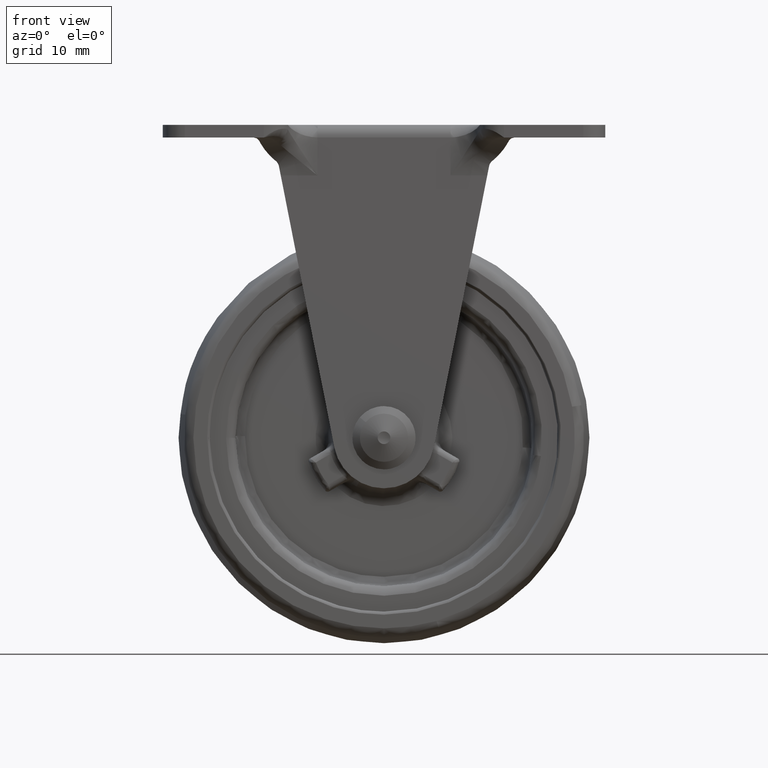
[diagram: clean part render]
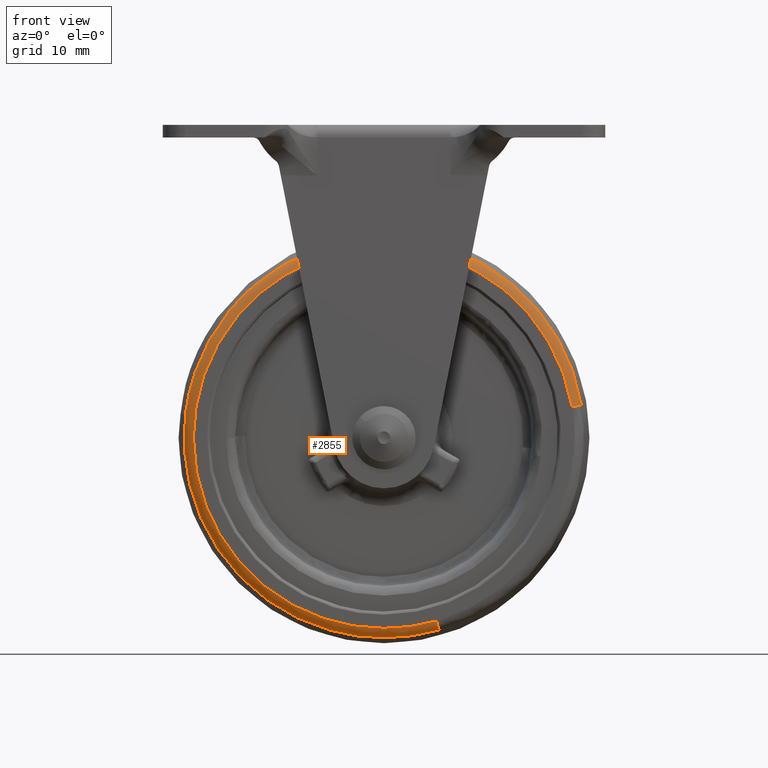
[diagram: same view with one face highlighted and labeled with its STEP entity id]
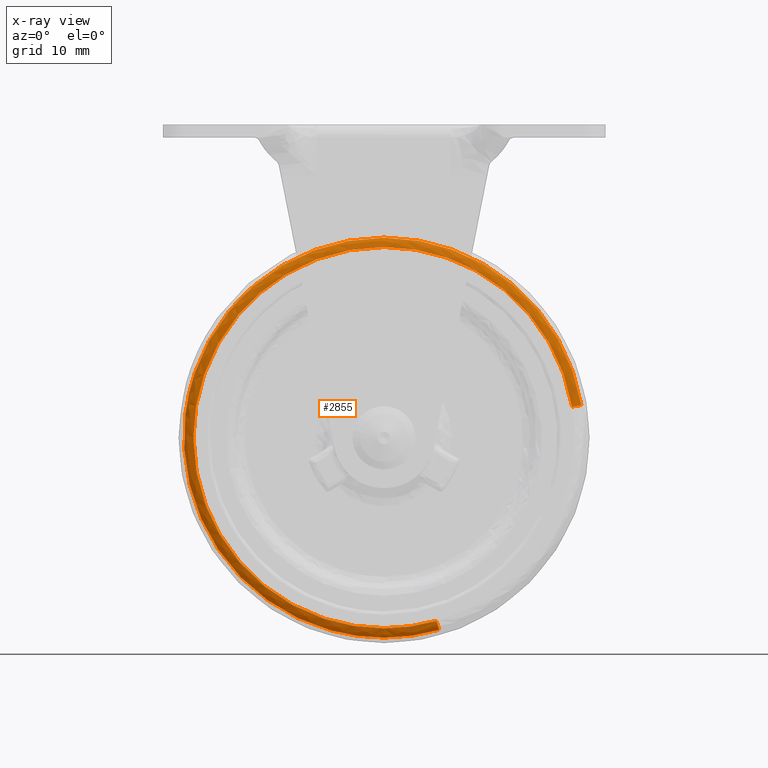
[diagram: x-ray of the same camera — body ghosted, the highlighted face saturated]
A machine part, front view. The second image highlights one B-rep face of the part: STEP entity #2855.
The next image is the same camera in x-ray: the body ghosted, the highlighted face saturated — about 0% of this face is hidden behind the body in this view.
In plain terms, the highlighted face is a freeform B-spline surface patch.
Its self-contained STEP definition (entity closure, byte-faithful):
#2623=CARTESIAN_POINT('',(-15.286248543437541,-9.278350407474363,-78.407682962927822));
#2624=VERTEX_POINT('',#2623);
#2625=CARTESIAN_POINT('',(7.210436321169896,-9.278347197282418,-42.855525342881897));
#2626=VERTEX_POINT('',#2625);
#2643=CARTESIAN_POINT('',(5.756112784111831,-10.500000000000000,-43.095244027652512));
#2644=VERTEX_POINT('',#2643);
#2645=CARTESIAN_POINT('',(7.210436321169896,-9.278347197282418,-42.855525342881897));
#2646=CARTESIAN_POINT('',(7.178836754019881,-9.448373912088377,-42.860733954651963));
#2647=CARTESIAN_POINT('',(7.049175842438832,-9.797717297303105,-42.882106188838897));
#2648=CARTESIAN_POINT('',(6.738382324162896,-10.151614041854440,-42.933334826447933));
#2649=CARTESIAN_POINT('',(6.299996382644837,-10.424884409220100,-43.005594745671587));
#2650=CARTESIAN_POINT('',(5.980261815486409,-10.500378281161540,-43.058297151937673));
#2651=CARTESIAN_POINT('',(5.756112784111831,-10.500000000000000,-43.095244027652512));
#2652=B_SPLINE_CURVE_WITH_KNOTS('',3,(#2645,#2646,#2647,#2648,#2649,#2650,#2651),.UNSPECIFIED.,.F.,.U.,(4,1,1,1,4),(0.000000224911104,0.519066379622189,1.102996005488461,1.394980835999054,2.076264843755196),.UNSPECIFIED.);
#2653=EDGE_CURVE('',#2626,#2644,#2652,.T.);
#2655=CARTESIAN_POINT('',(-15.692286151948540,-10.500000000000000,-76.990765741479123));
#2656=VERTEX_POINT('',#2655);
#2673=CARTESIAN_POINT('',(-15.286248543437541,-9.278350407474363,-78.407682962927822));
#2674=CARTESIAN_POINT('',(-15.296144828459861,-9.469685103605469,-78.373148682439364));
#2675=CARTESIAN_POINT('',(-15.331254467117450,-9.786605165326424,-78.250629362579559));
#2676=CARTESIAN_POINT('',(-15.426086099640250,-10.181997106751050,-77.919702939921493));
#2677=CARTESIAN_POINT('',(-15.546330185884139,-10.437634771966030,-77.500096694057831));
#2678=CARTESIAN_POINT('',(-15.644622008214331,-10.500110015557871,-77.157095521531247));
#2679=CARTESIAN_POINT('',(-15.692286151948540,-10.500000000000000,-76.990765741479123));
#2680=B_SPLINE_CURVE_WITH_KNOTS('',3,(#2673,#2674,#2675,#2676,#2677,#2678,#2679),.UNSPECIFIED.,.F.,.U.,(4,1,1,1,4),(0.000000224912007,0.583951890234030,1.005732663054068,1.557196356690432,2.076261733951056),.UNSPECIFIED.);
#2681=EDGE_CURVE('',#2624,#2656,#2680,.T.);
#2686=CARTESIAN_POINT('',(7.224866590762296,-9.184800220234854,-42.853146776372924));
#2687=CARTESIAN_POINT('',(2.078017367135221,-9.184800220234854,-11.628280185610635));
#2688=CARTESIAN_POINT('',(-29.146849223627083,-9.184800220234854,-16.775129409237707));
#2689=CARTESIAN_POINT('',(-60.371715814389376,-9.184800220234854,-21.921978632864786));
#2690=CARTESIAN_POINT('',(-55.224866590762296,-9.184800220234854,-53.146845223627082));
#2691=CARTESIAN_POINT('',(-50.078017367135224,-9.184800220234854,-84.371711814389357));
#2692=CARTESIAN_POINT('',(-18.853150776372939,-9.184800220234854,-79.224862590762328));
#2693=CARTESIAN_POINT('',(-17.044424877015658,-9.184800220234852,-78.926727145930172));
#2694=CARTESIAN_POINT('',(-15.282220356728910,-9.184800220234854,-78.421742640076786));
#2695=CARTESIAN_POINT('',(7.053260521588556,-10.585745868416423,-42.881432904075972));
#2696=CARTESIAN_POINT('',(1.934697425664514,-10.585745868416423,-11.828172382487411));
#2697=CARTESIAN_POINT('',(-29.118563095924035,-10.585745868416423,-16.946735478411451));
#2698=CARTESIAN_POINT('',(-60.171823617512587,-10.585745868416423,-22.065298574335475));
#2699=CARTESIAN_POINT('',(-55.053260521588555,-10.585745868416423,-53.118559095924049));
#2700=CARTESIAN_POINT('',(-49.934697425664496,-10.585745868416423,-84.171819617512597));
#2701=CARTESIAN_POINT('',(-18.881436904075976,-10.585745868416423,-79.053256521588565));
#2702=CARTESIAN_POINT('',(-17.082651426430310,-10.585745868416419,-78.756759573805553));
#2703=CARTESIAN_POINT('',(-15.330131654993574,-10.585745868416419,-78.254550369034447));
#2704=CARTESIAN_POINT('',(5.663108640351256,-10.497035478112680,-43.110574063410390));
#2705=CARTESIAN_POINT('',(0.773686703761639,-10.497035478112680,-13.447465423059132));
#2706=CARTESIAN_POINT('',(-28.889421936589617,-10.497035478112680,-18.336887359648749));
#2707=CARTESIAN_POINT('',(-58.552530576940889,-10.497035478112680,-23.226309296238359));
#2708=CARTESIAN_POINT('',(-53.663108640351254,-10.497035478112680,-52.889417936589624));
#2709=CARTESIAN_POINT('',(-48.773686703761641,-10.497035478112680,-82.552526576940878));
#2710=CARTESIAN_POINT('',(-19.110578063410390,-10.497035478112680,-77.663104640351250));
#2711=CARTESIAN_POINT('',(-17.392318268855334,-10.497035478112682,-77.379880881367711));
#2712=CARTESIAN_POINT('',(-15.718253017692714,-10.497035478112677,-76.900153923518872));
#2720=(BOUNDED_SURFACE()B_SPLINE_SURFACE(2,2,((#2686,#2695,#2704),(#2687,#2696,#2705),(#2688,#2697,#2706),(#2689,#2698,#2707),(#2690,#2699,#2708),(#2691,#2700,#2709),(#2692,#2701,#2710),(#2693,#2702,#2711),(#2694,#2703,#2712)),.UNSPECIFIED.,.F.,.F.,.U.)B_SPLINE_SURFACE_WITH_KNOTS((3,2,2,2,3),(3,3),(0.0,52.433150795789579,104.866301591579200,157.299452387368800,161.494103575959290),(0.0,2.379381011712925),.UNSPECIFIED.)GEOMETRIC_REPRESENTATION_ITEM()RATIONAL_B_SPLINE_SURFACE(((0.914492820881647,0.667331331204623,0.918296117526874),(0.646644074991827,0.471874509593035,0.649333411840531),(0.914492820881647,0.667331331204623,0.918296117526874),(0.646644074991827,0.471874509593035,0.649333411840531),(0.914492820881647,0.667331331204623,0.918296117526874),(0.646644074991827,0.471874509593035,0.649333411840531),(0.914492820881647,0.667331331204623,0.918296117526874),(0.893064925680669,0.651694788737734,0.896779105560766),(0.875065492996615,0.638560092543621,0.878704814791027)))REPRESENTATION_ITEM('')SURFACE());
#2721=CARTESIAN_POINT('',(-24.0,-9.278350515463870,-79.631576594482993));
#2722=VERTEX_POINT('',#2721);
#2723=CARTESIAN_POINT('',(-24.0,-9.278350515463870,-79.631576594482993));
#2724=CARTESIAN_POINT('',(-22.436721365039539,-9.278350515472017,-79.631668059100377));
#2725=CARTESIAN_POINT('',(-19.494114035646039,-9.278350496173749,-79.412953979253672));
#2726=CARTESIAN_POINT('',(-16.612228493189001,-9.278350441005667,-78.787708106073524));
#2727=CARTESIAN_POINT('',(-15.286248543437541,-9.278350407474363,-78.407682962927822));
#2728=B_SPLINE_CURVE_WITH_KNOTS('',3,(#2723,#2724,#2725,#2726,#2727),.UNSPECIFIED.,.F.,.U.,(4,1,4),(1.828818E-009,4.689826257207092,8.827911730288111),.UNSPECIFIED.);
#2729=EDGE_CURVE('',#2722,#2624,#2728,.T.);
#2730=ORIENTED_EDGE('',*,*,#2729,.T.);
#2731=ORIENTED_EDGE('',*,*,#2681,.T.);
#2732=CARTESIAN_POINT('',(-24.0,-10.500000000000000,-78.157629176648555));
#2733=VERTEX_POINT('',#2732);
#2734=CARTESIAN_POINT('',(-24.0,-10.500000000000000,-78.157629176648555));
#2735=CARTESIAN_POINT('',(-22.334215195293101,-10.500000000000000,-78.157760354793965));
#2736=CARTESIAN_POINT('',(-19.528750226987640,-10.500000000000011,-77.924547153494728));
#2737=CARTESIAN_POINT('',(-16.787922576690910,-10.499999999999989,-77.304756680524250));
#2738=CARTESIAN_POINT('',(-15.692286151948540,-10.500000000000000,-76.990765741479123));
#2739=B_SPLINE_CURVE_WITH_KNOTS('',3,(#2734,#2735,#2736,#2737,#2738),.UNSPECIFIED.,.F.,.U.,(4,1,4),(9.604442E-010,4.997341114401102,8.416574559828456),.UNSPECIFIED.);
#2740=EDGE_CURVE('',#2733,#2656,#2739,.T.);
#2741=ORIENTED_EDGE('',*,*,#2740,.F.);
#2742=CARTESIAN_POINT('',(-54.157633176648503,-10.500000000000000,-47.999997680879332));
#2743=VERTEX_POINT('',#2742);
#2744=CARTESIAN_POINT('',(-54.157633176648503,-10.500000000000000,-47.999997680879332));
#2745=CARTESIAN_POINT('',(-54.157745504487970,-10.500000000000030,-49.603723257069447));
#2746=CARTESIAN_POINT('',(-53.945536981819473,-10.499999999999959,-52.255991648133460));
#2747=CARTESIAN_POINT('',(-53.076061986760507,-10.500000000000011,-56.301927646106272));
#2748=CARTESIAN_POINT('',(-51.847351318292873,-10.500000000000030,-59.803548177866460));
#2749=CARTESIAN_POINT('',(-50.002674007263337,-10.499999999999970,-63.440404678357730));
#2750=CARTESIAN_POINT('',(-47.564965975383927,-10.500000000000030,-67.017161975764068));
#2751=CARTESIAN_POINT('',(-44.214389626673309,-10.499999999999950,-70.580032903281719));
#2752=CARTESIAN_POINT('',(-40.551403699301680,-10.500000000000041,-73.331546909257483));
#2753=CARTESIAN_POINT('',(-36.817073601495657,-10.499999999999970,-75.386821757192621));
#2754=CARTESIAN_POINT('',(-33.310513982860620,-10.500000000000060,-76.776698869355258));
#2755=CARTESIAN_POINT('',(-28.934444608456150,-10.499999999999901,-77.872799618239725));
#2756=CARTESIAN_POINT('',(-25.850458334663131,-10.500000000000069,-78.157856515005122));
#2757=CARTESIAN_POINT('',(-24.0,-10.500000000000000,-78.157629176648555));
#2758=B_SPLINE_CURVE_WITH_KNOTS('',3,(#2744,#2745,#2746,#2747,#2748,#2749,#2750,#2751,#2752,#2753,#2754,#2755,#2756,#2757),.UNSPECIFIED.,.F.,.U.,(4,1,1,1,1,1,1,1,1,1,1,4),(0.000000069216981,4.811162535834292,7.956937569414521,12.398032318226800,15.913908661990110,20.169968314376341,25.351148004736430,30.532452920832061,33.863265932889199,38.119325854322327,41.820246910334888,47.371572783468032),.UNSPECIFIED.);
#2759=EDGE_CURVE('',#2743,#2733,#2758,.T.);
#2760=ORIENTED_EDGE('',*,*,#2759,.F.);
#2761=CARTESIAN_POINT('',(-24.0,-10.500000000000000,-17.842362823351451));
#2762=VERTEX_POINT('',#2761);
#2763=CARTESIAN_POINT('',(-24.0,-10.500000000000000,-17.842362823351451));
#2764=CARTESIAN_POINT('',(-26.035521892358659,-10.500000000000011,-17.842039870888510));
#2765=CARTESIAN_POINT('',(-29.427877121659929,-10.499999999999980,-18.187226190169081));
#2766=CARTESIAN_POINT('',(-33.777420550589873,-10.500000000000030,-19.390948095963878));
#2767=CARTESIAN_POINT('',(-37.373062982183583,-10.499999999999970,-20.880308470632841));
#2768=CARTESIAN_POINT('',(-40.273312838892252,-10.500000000000041,-22.535059926494782));
#2769=CARTESIAN_POINT('',(-43.168610793172292,-10.499999999999989,-24.641336570180510));
#2770=CARTESIAN_POINT('',(-45.550560044442669,-10.499999999999879,-26.800230022424842));
#2771=CARTESIAN_POINT('',(-48.182240128155712,-10.500000000000060,-29.832151883269169));
#2772=CARTESIAN_POINT('',(-50.668854456816760,-10.499999999999970,-33.603245242628986));
#2773=CARTESIAN_POINT('',(-52.475841239634548,-10.500000000000011,-37.748353864675337));
#2774=CARTESIAN_POINT('',(-53.811646897866801,-10.500000000000000,-42.633839686396662));
#2775=CARTESIAN_POINT('',(-54.158040966330503,-10.500000000000000,-45.841100925238528));
#2776=CARTESIAN_POINT('',(-54.157633176648503,-10.500000000000000,-47.999997680879332));
#2777=B_SPLINE_CURVE_WITH_KNOTS('',3,(#2763,#2764,#2765,#2766,#2767,#2768,#2769,#2770,#2771,#2772,#2773,#2774,#2775,#2776),.UNSPECIFIED.,.F.,.U.,(4,1,1,1,1,1,1,1,1,1,1,4),(0.000000069122315,6.106490011767534,10.177482472312290,13.508309446233200,17.764370537905510,20.169969121072910,24.240898834113551,27.386676254413761,32.197860591022547,37.749228200826451,40.894994956244709,47.371574678214131),.UNSPECIFIED.);
#2778=EDGE_CURVE('',#2762,#2743,#2777,.T.);
#2779=ORIENTED_EDGE('',*,*,#2778,.F.);
#2780=CARTESIAN_POINT('',(5.756112784111831,-10.500000000000000,-43.095244027652512));
#2781=CARTESIAN_POINT('',(5.450693167219987,-10.499999999999989,-41.241152678308453));
#2782=CARTESIAN_POINT('',(4.548014199947097,-10.500000000000020,-37.805220630042847));
#2783=CARTESIAN_POINT('',(2.641014067761168,-10.500000000000041,-33.677102743950272));
#2784=CARTESIAN_POINT('',(0.656818613157704,-10.499999999999980,-30.545334934163549));
#2785=CARTESIAN_POINT('',(-1.498422498058744,-10.499999999999860,-27.804689449954989));
#2786=CARTESIAN_POINT('',(-4.057038483281787,-10.500000000000430,-25.270054120455239));
#2787=CARTESIAN_POINT('',(-7.307222609695081,-10.499999999999860,-22.777473892892420));
#2788=CARTESIAN_POINT('',(-10.814132499448061,-10.499999999999860,-20.758803224833439));
#2789=CARTESIAN_POINT('',(-15.089927260727480,-10.500000000000441,-19.067841919639509));
#2790=CARTESIAN_POINT('',(-19.468132982824500,-10.499999999999730,-18.063892024130620));
#2791=CARTESIAN_POINT('',(-22.563075306267539,-10.500000000000201,-17.842315669982899));
#2792=CARTESIAN_POINT('',(-24.0,-10.500000000000000,-17.842362823351451));
#2793=B_SPLINE_CURVE_WITH_KNOTS('',3,(#2780,#2781,#2782,#2783,#2784,#2785,#2786,#2787,#2788,#2789,#2790,#2791,#2792),.UNSPECIFIED.,.F.,.U.,(4,1,1,1,1,1,1,1,1,1,4),(0.000000059397458,5.637200633879999,10.611229363641280,13.595640232895020,16.745856551906169,21.056703056945519,24.372663741916028,29.015065964804521,33.160092647556141,38.134134817174441,42.444916941264502),.UNSPECIFIED.);
#2794=EDGE_CURVE('',#2644,#2762,#2793,.T.);
#2795=ORIENTED_EDGE('',*,*,#2794,.F.);
#2796=ORIENTED_EDGE('',*,*,#2653,.F.);
#2797=CARTESIAN_POINT('',(-24.0,-9.278344721349473,-16.368414311317402));
#2798=VERTEX_POINT('',#2797);
#2799=CARTESIAN_POINT('',(7.210436321169896,-9.278347197282418,-42.855525342881897));
#2800=CARTESIAN_POINT('',(6.984224725413351,-9.278347068965859,-41.482817104010223));
#2801=CARTESIAN_POINT('',(6.416255418846849,-9.278346841572654,-39.050201198377842));
#2802=CARTESIAN_POINT('',(5.170733936572727,-9.278346520169613,-35.611888571575889));
#2803=CARTESIAN_POINT('',(3.360388181529676,-9.278346174009172,-31.908720686510140));
#2804=CARTESIAN_POINT('',(0.937096499758688,-9.278345841261480,-28.349043780211169));
#2805=CARTESIAN_POINT('',(-1.940730642424285,-9.278345550268945,-25.236054245780821));
#2806=CARTESIAN_POINT('',(-5.060835383030327,-9.278345298569976,-22.543420161499061));
#2807=CARTESIAN_POINT('',(-8.862519996259337,-9.278345067121952,-20.067434749031442));
#2808=CARTESIAN_POINT('',(-13.758242138109130,-9.278344865443389,-17.909900334199051));
#2809=CARTESIAN_POINT('',(-18.840854317845800,-9.278344746833609,-16.641043455135492));
#2810=CARTESIAN_POINT('',(-22.376903967611131,-9.278344721343116,-16.368344458690991));
#2811=CARTESIAN_POINT('',(-24.0,-9.278344721349473,-16.368414311317402));
#2812=B_SPLINE_CURVE_WITH_KNOTS('',3,(#2799,#2800,#2801,#2802,#2803,#2804,#2805,#2806,#2807,#2808,#2809,#2810,#2811),.UNSPECIFIED.,.F.,.U.,(4,1,1,1,1,1,1,1,1,1,4),(0.000000058187709,4.173666006069958,7.477852010374988,10.955946929578330,16.520896243238521,20.346783960636710,23.650903734886420,28.868029514870209,33.911265263423651,39.650104526163631,44.519403615883093),.UNSPECIFIED.);
#2813=EDGE_CURVE('',#2626,#2798,#2812,.T.);
#2814=ORIENTED_EDGE('',*,*,#2813,.T.);
#2815=CARTESIAN_POINT('',(-55.420019612158342,-9.278347600580617,-44.347696272314103));
#2816=VERTEX_POINT('',#2815);
#2817=CARTESIAN_POINT('',(-24.0,-9.278344721349473,-16.368414311317402));
#2818=CARTESIAN_POINT('',(-25.318451361211149,-9.278344788732179,-16.368375738289860));
#2819=CARTESIAN_POINT('',(-27.955366143167200,-9.278344931017360,-16.533512678415210));
#2820=CARTESIAN_POINT('',(-32.025974540333500,-9.278345174221053,-17.306053993206479));
#2821=CARTESIAN_POINT('',(-36.187734895295250,-9.278345449929663,-18.690437684033139));
#2822=CARTESIAN_POINT('',(-40.052956252535722,-9.278345735972472,-20.634896413780730));
#2823=CARTESIAN_POINT('',(-43.968489937396221,-9.278346057906530,-23.311462124386100));
#2824=CARTESIAN_POINT('',(-47.358036515299702,-9.278346374934280,-26.470902237989598));
#2825=CARTESIAN_POINT('',(-50.088158187580319,-9.278346674122888,-29.978884647220259));
#2826=CARTESIAN_POINT('',(-51.883583966244942,-9.278346901586472,-32.960562027090361));
#2827=CARTESIAN_POINT('',(-53.279233544080952,-9.278347105972534,-35.884094714380844));
#2828=CARTESIAN_POINT('',(-54.611951452957911,-9.278347343886656,-39.614989929023693));
#2829=CARTESIAN_POINT('',(-55.212591054091170,-9.278347508698888,-42.561791346650523));
#2830=CARTESIAN_POINT('',(-55.420019612158342,-9.278347600580617,-44.347696272314103));
#2831=B_SPLINE_CURVE_WITH_KNOTS('',3,(#2817,#2818,#2819,#2820,#2821,#2822,#2823,#2824,#2825,#2826,#2827,#2828,#2829,#2830),.UNSPECIFIED.,.F.,.U.,(4,1,1,1,1,1,1,1,1,1,1,4),(0.000000061576849,3.955356184452263,7.910781840882230,12.405549481587350,17.080116083954969,20.855719990428089,26.608958888381721,30.923951651810771,34.160195237737227,37.036854121828803,40.632664788619230,46.026369489523610),.UNSPECIFIED.);
#2832=EDGE_CURVE('',#2798,#2816,#2831,.T.);
#2833=ORIENTED_EDGE('',*,*,#2832,.T.);
#2834=CARTESIAN_POINT('',(-55.420019612158342,-9.278347600580617,-44.347696272314103));
#2835=CARTESIAN_POINT('',(-55.620640207543197,-9.278347671826472,-46.072631390610908));
#2836=CARTESIAN_POINT('',(-55.739104972035278,-9.278347830655614,-49.625272308227167));
#2837=CARTESIAN_POINT('',(-55.065478584777402,-9.278348087486533,-54.599539715185202));
#2838=CARTESIAN_POINT('',(-53.853045675468891,-9.278348324790363,-58.670204428587937));
#2839=CARTESIAN_POINT('',(-52.429189287105892,-9.278348536355196,-61.993966978923297));
#2840=CARTESIAN_POINT('',(-50.504375149800843,-9.278348775079781,-65.461090911996962));
#2841=CARTESIAN_POINT('',(-47.977891368438620,-9.278349032349771,-68.794944111660470));
#2842=CARTESIAN_POINT('',(-44.814542238500003,-9.278349306519148,-71.928428962163167));
#2843=CARTESIAN_POINT('',(-41.778680874110520,-9.278349538637459,-74.262812849206114));
#2844=CARTESIAN_POINT('',(-38.717868903101781,-9.278349746913609,-76.057479637623359));
#2845=CARTESIAN_POINT('',(-35.749664726706307,-9.278349931669252,-77.424183153163455));
#2846=CARTESIAN_POINT('',(-32.264586149151853,-9.278350130152957,-78.628527242727046));
#2847=CARTESIAN_POINT('',(-28.237210547173831,-9.278350333188476,-79.448767135237588));
#2848=CARTESIAN_POINT('',(-25.319785852903021,-9.278350461314831,-79.631611901791601));
#2849=CARTESIAN_POINT('',(-24.0,-9.278350515463870,-79.631576594482993));
#2850=B_SPLINE_CURVE_WITH_KNOTS('',3,(#2834,#2835,#2836,#2837,#2838,#2839,#2840,#2841,#2842,#2843,#2844,#2845,#2846,#2847,#2848,#2849),.UNSPECIFIED.,.F.,.U.,(4,1,1,1,1,1,1,1,1,1,1,1,1,4),(0.000000069129385,5.209681076189199,10.627788034410390,15.003941063277519,17.921391838755579,21.464004098286509,26.882015563826929,30.424644405060359,34.800790185646207,38.343392928931607,41.052440655139229,44.595044129292958,49.387966751660912,53.347331510768868),.UNSPECIFIED.);
#2851=EDGE_CURVE('',#2816,#2722,#2850,.T.);
#2852=ORIENTED_EDGE('',*,*,#2851,.T.);
#2853=EDGE_LOOP('',(#2730,#2731,#2741,#2760,#2779,#2795,#2796,#2814,#2833,#2852));
#2854=FACE_OUTER_BOUND('',#2853,.T.);
#2855=ADVANCED_FACE('',(#2854),#2720,.T.);